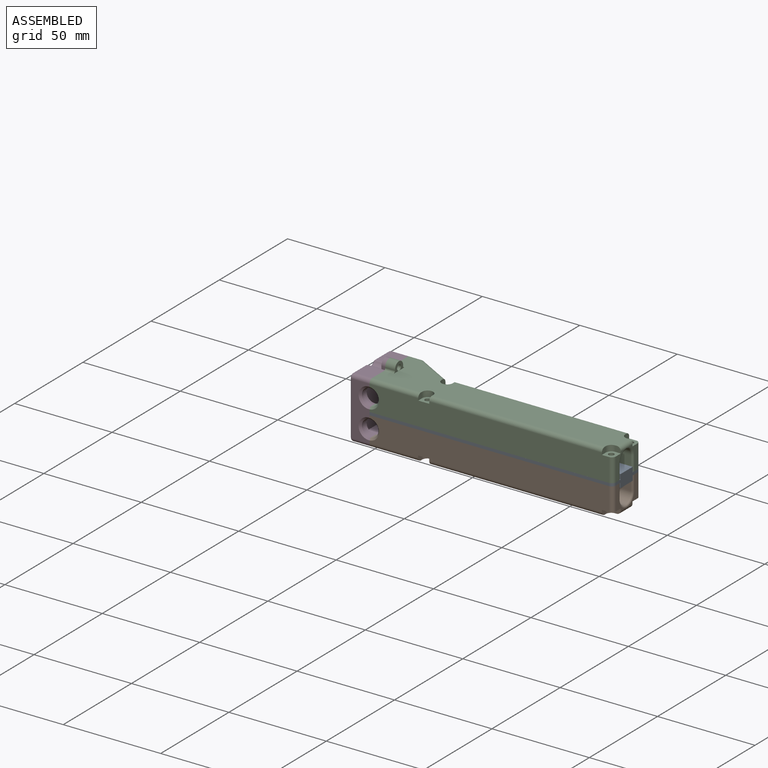
[diagram: assembled view]
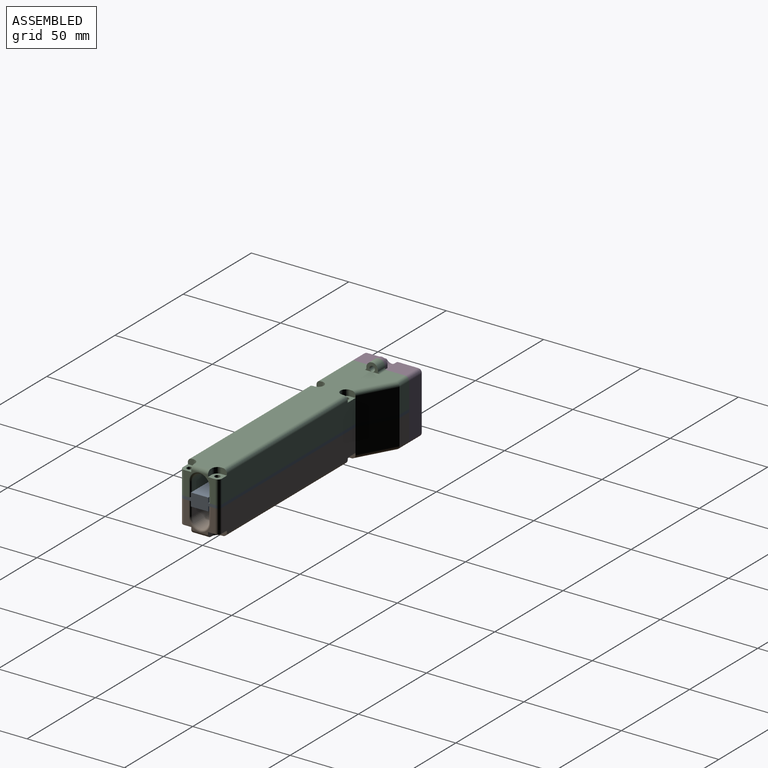
[diagram: assembled view, second angle]
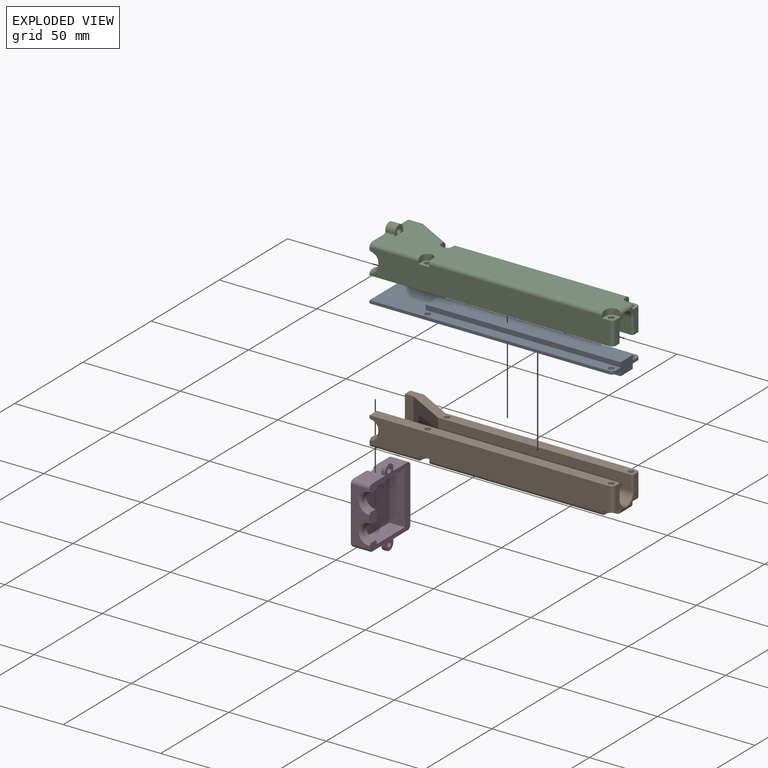
[diagram: exploded view]
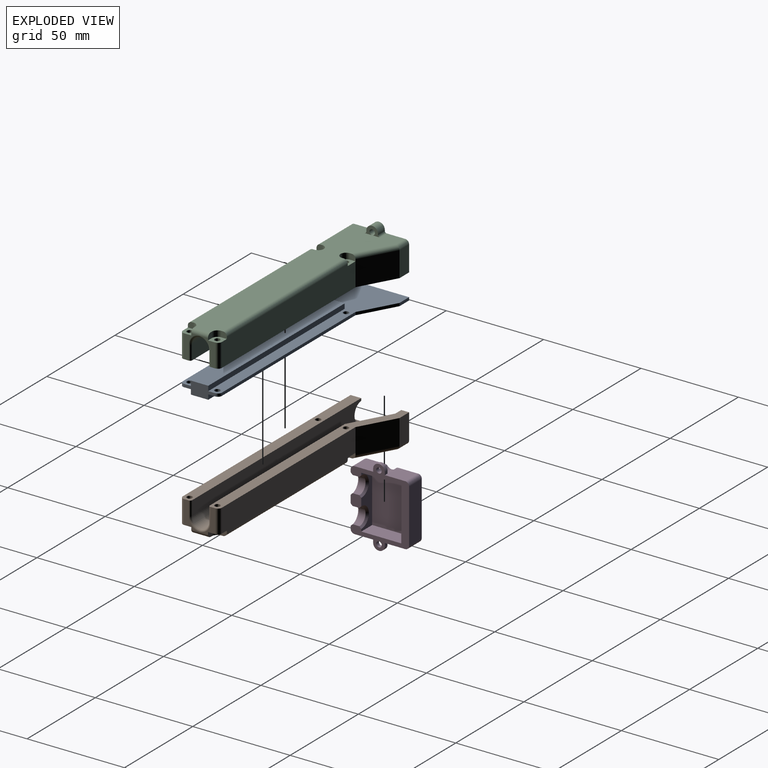
[diagram: exploded view, second angle]
ASSEMBLY  parts=4 mates=9
PART A: 22 faces, bbox 125x30x6.5 mm
  f0: plane 16x6.5mm, normal (1,0,0), area 68.5mm2, adj f6,f7,f9,f10,f11,f13,f14,f15
  f1: plane 98x1.5mm, normal (0,1,0), area 147mm2, adj f2,f6,f7,f16
  f2: plane 18x10mm, normal (0.49,0.87,0), area 30.9mm2, adj f1,f3,f6,f7
  f3: plane 7x1.5mm, normal (0,1,0), area 10.5mm2, adj f2,f4,f6,f7
  f4: plane 30x1.5mm, normal (-1,0,0), area 45mm2, adj f3,f5,f6,f7
  f5: plane 123x1.5mm, normal (0,-1,0), area 184.5mm2, adj f4,f6,f7,f17
  f6: plane 125x30mm, normal (0,0,1), area 1743.7mm2, adj f0,f1,f2,f3,f4,f5,f8,f9
  f7: plane 125x30mm, normal (0,0,-1), area 1743.7mm2, adj f0,f1,f2,f3,f4,f5,f12,f13
  f8: plane 8.9x2.5mm, normal (-1,0,0), area 22.2mm2, adj f6,f9,f10,f11
  f9: plane 100x2.5mm, normal (0,1,0), area 250mm2, adj f0,f6,f8,f11
  f10: plane 100x2.5mm, normal (0,-1,0), area 250mm2, adj f0,f6,f8,f11
  f11: plane 100x8.9mm, normal (0,0,1), area 890mm2, adj f0,f8,f9,f10
  f12: plane 8.9x2.5mm, normal (-1,0,0), area 22.2mm2, adj f7,f13,f14,f15
  f13: plane 100x2.5mm, normal (0,1,0), area 250mm2, adj f0,f7,f12,f15
  f14: plane 100x2.5mm, normal (0,-1,0), area 250mm2, adj f0,f7,f12,f15
  f15: plane 100x8.9mm, normal (0,0,-1), area 890mm2, adj f0,f12,f13,f14
  f16: cylinder r=2mm len=2mm, axis (0,0,-1), area 4.7mm2, adj f0,f1,f6,f7
  f17: cylinder r=2mm len=2mm, axis (0,0,1), area 4.7mm2, adj f0,f5,f6,f7
  f18: cylinder r=1.4mm len=2.8mm, axis (0,0,1), area 13.2mm2, adj f6,f7
  f19: cylinder r=1.4mm len=2.8mm, axis (0,0,1), area 13.2mm2, adj f6,f7
  f20: cylinder r=1.4mm len=2.8mm, axis (0,0,1), area 13.2mm2, adj f6,f7
  f21: cylinder r=1.4mm len=2.8mm, axis (0,0,1), area 13.2mm2, adj f6,f7
PART B: 60 faces, bbox 125.1x30x19.4 mm
  f0: cylinder r=2mm len=25.01mm, axis (-1,0,0), area 78.6mm2, adj f1,f13,f14,f56
  f1: plane 123x26mm, normal (0,0,-1), area 2035.3mm2, adj f0,f3,f6,f8,f9,f13,f30,f31
  f2: cylinder r=1.4mm len=12mm, axis (0,0,-1), area 105.6mm2, adj f19,f59
  f3: cylinder r=2mm len=88.59mm, axis (-1,0,0), area 278.3mm2, adj f1,f14,f51,f57
  f4: plane 13x7.26mm, normal (1,0,0), area 34.5mm2, adj f5,f6,f19,f35,f36,f52,f54
  f5: cylinder r=2mm len=12mm, axis (0,0,-1), area 37.7mm2, adj f4,f14,f19,f54
  f6: cylinder r=2mm len=8.6mm, axis (0,-1,0), area 26.9mm2, adj f1,f4,f11,f34,f44,f52
  f7: plane 98x13mm, normal (0,1,0), area 1264.6mm2, adj f8,f9,f12,f15,f16,f42,f45,f47
  f8: cylinder r=2mm len=2mm, axis (1,0,0), area 0.6mm2, adj f1,f7,f31,f47
  f9: cylinder r=2mm len=88.59mm, axis (1,0,0), area 278.3mm2, adj f1,f7,f42,f49
  f10: cylinder r=1.4mm len=12mm, axis (0,0,-1), area 105.6mm2, adj f15,f50
  f11: plane 13x7.26mm, normal (1,0,0), area 34.5mm2, adj f6,f12,f15,f32,f33,f44,f45
  f12: cylinder r=2mm len=12mm, axis (0,0,1), area 37.7mm2, adj f7,f11,f15,f45
  f13: plane 30.01x19.4mm, normal (-1,0,0), area 140.3mm2, adj f0,f1,f14,f15,f17,f21,f23,f24
  f14: plane 123x13mm, normal (0,-1,0), area 1549.6mm2, adj f0,f3,f5,f13,f18,f19,f29,f51
  f15: plane 125x15.45mm, normal (0,0,1), area 659.6mm2, adj f7,f10,f11,f12,f13,f16,f17,f22
  f16: plane 18x13mm, normal (0.49,0.87,0), area 267.7mm2, adj f7,f15,f17,f31
  f17: plane 13x7mm, normal (0,1,0), area 91mm2, adj f13,f15,f16,f30
  f18: plane 5.46x2.22mm, normal (-1,0,0), area 11.1mm2, adj f14,f19,f21,f27,f28,f29
  f19: plane 125x5.45mm, normal (0,0,1), area 667.9mm2, adj f2,f4,f5,f14,f18,f21,f36,f55
  f20: cylinder r=4.55mm len=99mm, axis (1,0,0), area 1415.1mm2, adj f21,f22,f25,f33,f34,f35
  f21: plane 124x12.9mm, normal (0,1,0), area 1025mm2, adj f13,f18,f19,f20,f24,f25,f28,f36
  f22: plane 99x7.5mm, normal (0,-1,0), area 742.5mm2, adj f15,f20,f26,f32
  f23: plane 12.9x4.39mm, normal (0,-1,0), area 56.6mm2, adj f13,f15,f24,f26
  f24: plane 25x20.55mm, normal (0,0,1), area 395.8mm2, adj f13,f21,f23,f25,f26
  f25: plane 9.1x5.4mm, normal (-1,0,0), area 16.6mm2, adj f20,f21,f24,f26
  f26: plane 20.61x12.9mm, normal (-0.49,-0.87,0), area 304.1mm2, adj f15,f22,f23,f24,f25
  f27: cylinder r=4.25mm len=8.48mm, axis (0,-1,0), area 43.9mm2, adj f13,f18,f28,f29
  f28: cone r=5.25mm half-angle=45deg, axis (0,1,0), area 20.2mm2, adj f13,f18,f21,f27
  f29: cone r=4.25mm half-angle=45deg, axis (0,-1,0), area 20.2mm2, adj f13,f14,f18,f27
  f30: cylinder r=2mm len=7mm, axis (1,0,0), area 21.4mm2, adj f1,f13,f17,f31
  f31: cylinder r=2mm len=19.42mm, axis (0.87,-0.49,0), area 64.7mm2, adj f1,f8,f16,f30
  f32: cylinder r=1mm len=7.5mm, axis (0,0,1), area 11.8mm2, adj f11,f15,f22,f33
  f33: torus R=5.55mm, axis (1,0,0), area 11.1mm2, adj f11,f20,f32,f34
  f34: bspline ~2.38x1.19mm, area 2.1mm2, adj f6,f20,f33,f35
  f35: torus R=5.55mm, axis (1,0,0), area 11.1mm2, adj f4,f20,f34,f36
  f36: cylinder r=1mm len=7.5mm, axis (0,0,-1), area 11.8mm2, adj f4,f19,f21,f35
  f37: plane 5x1.55mm, normal (0,-1,0), area 7.7mm2, adj f1,f13,f38,f41
  f38: cylinder r=3mm len=6mm, axis (-1,0,0), area 46.1mm2, adj f13,f37,f39,f41
  f39: plane 5x1.45mm, normal (0,1,0), area 7.2mm2, adj f1,f13,f38,f41
  f40: cylinder r=1.4mm len=5mm, axis (-1,0,0), area 42.5mm2, adj f1,f13,f41
  f41: plane 6x4.39mm, normal (1,0,0), area 16.3mm2, adj f1,f37,f38,f39,f40
  f42: plane 3x2.85mm, normal (1,0,0), area 7.7mm2, adj f1,f7,f9,f43,f45
  f43: cylinder r=2.85mm len=3mm, axis (0,0,-1), area 13.4mm2, adj f1,f42,f44,f45
  f44: plane 3x2.86mm, normal (0,1,0), area 7.7mm2, adj f1,f6,f11,f43,f45
  f45: plane 5.71x5.7mm, normal (0,0,-1), area 23.7mm2, adj f7,f11,f12,f42,f43,f44,f46
  f46: cylinder r=1.4mm len=12mm, axis (0,0,-1), area 105.6mm2, adj f15,f45
  f47: plane 3x2.85mm, normal (1,0,0), area 7.7mm2, adj f1,f7,f8,f48,f50
  f48: cylinder r=2.85mm len=5.7mm, axis (0,0,-1), area 26.9mm2, adj f1,f47,f49,f50
  f49: plane 3x2.85mm, normal (-1,0,0), area 7.7mm2, adj f1,f7,f9,f48,f50
  f50: plane 5.7x5.7mm, normal (0,0,-1), area 22.8mm2, adj f7,f10,f47,f48,f49
  f51: plane 3x2.85mm, normal (1,0,0), area 7.7mm2, adj f1,f3,f14,f53,f54
  f52: plane 3x2.86mm, normal (0,-1,0), area 7.7mm2, adj f1,f4,f6,f53,f54
  f53: cylinder r=2.85mm len=3mm, axis (0,0,-1), area 13.4mm2, adj f1,f51,f52,f54
  f54: plane 5.71x5.7mm, normal (0,0,-1), area 23.7mm2, adj f4,f5,f14,f51,f52,f53,f55
  f55: cylinder r=1.4mm len=12mm, axis (0,0,-1), area 105.6mm2, adj f19,f54
  f56: plane 3x2.85mm, normal (1,0,0), area 7.7mm2, adj f0,f1,f14,f58,f59
  f57: plane 3x2.85mm, normal (-1,0,0), area 7.7mm2, adj f1,f3,f14,f58,f59
  f58: cylinder r=2.85mm len=5.7mm, axis (0,0,-1), area 26.9mm2, adj f1,f56,f57,f59
  f59: plane 5.7x5.7mm, normal (0,0,-1), area 22.8mm2, adj f2,f14,f56,f57,f58
PART C: 62 faces, bbox 125.1x30x19.4 mm
  f0: cylinder r=2mm len=25.01mm, axis (-1,0,0), area 78.6mm2, adj f1,f13,f14,f56
  f1: plane 123x26mm, normal (0,0,1), area 2025.3mm2, adj f0,f3,f6,f8,f9,f13,f30,f31
  f2: cylinder r=1.4mm len=12mm, axis (0,0,1), area 105.6mm2, adj f19,f59
  f3: cylinder r=2mm len=88.59mm, axis (-1,0,0), area 278.3mm2, adj f1,f14,f51,f57
  f4: plane 13x7.26mm, normal (1,0,0), area 34.5mm2, adj f5,f6,f19,f35,f36,f52,f54
  f5: cylinder r=2mm len=12mm, axis (0,0,1), area 37.7mm2, adj f4,f14,f19,f54
  f6: cylinder r=2mm len=8.6mm, axis (0,-1,0), area 26.9mm2, adj f1,f4,f11,f34,f44,f52
  f7: plane 98x13mm, normal (0,1,0), area 1264.6mm2, adj f8,f9,f12,f15,f16,f42,f45,f47
  f8: cylinder r=2mm len=2mm, axis (1,0,0), area 0.6mm2, adj f1,f7,f31,f47
  f9: cylinder r=2mm len=88.59mm, axis (1,0,0), area 278.3mm2, adj f1,f7,f42,f49
  f10: cylinder r=1.4mm len=12mm, axis (0,0,1), area 105.6mm2, adj f15,f50
  f11: plane 13x7.26mm, normal (1,0,0), area 34.5mm2, adj f6,f12,f15,f32,f33,f44,f45
  f12: cylinder r=2mm len=12mm, axis (0,0,-1), area 37.7mm2, adj f7,f11,f15,f45
  f13: plane 30.01x19.4mm, normal (-1,0,0), area 140.7mm2, adj f0,f1,f14,f15,f17,f21,f23,f24
  f14: plane 123x13mm, normal (0,-1,0), area 1549.6mm2, adj f0,f3,f5,f13,f18,f19,f29,f51
  f15: plane 125x15.45mm, normal (0,0,-1), area 659.6mm2, adj f7,f10,f11,f12,f13,f16,f17,f22
  f16: plane 18x13mm, normal (0.49,0.87,0), area 267.7mm2, adj f7,f15,f17,f31
  f17: plane 13x7mm, normal (0,1,0), area 91mm2, adj f13,f15,f16,f30
  f18: plane 5.46x2.22mm, normal (-1,0,0), area 11.1mm2, adj f14,f19,f21,f27,f28,f29
  f19: plane 125x5.45mm, normal (0,0,-1), area 667.9mm2, adj f2,f4,f5,f14,f18,f21,f36,f55
  f20: cylinder r=4.55mm len=99mm, axis (1,0,0), area 1415.1mm2, adj f21,f22,f25,f33,f34,f35
  f21: plane 124x12.9mm, normal (0,1,0), area 1025mm2, adj f13,f18,f19,f20,f24,f25,f28,f36
  f22: plane 99x7.5mm, normal (0,-1,0), area 742.5mm2, adj f15,f20,f26,f32
  f23: plane 12.9x4.39mm, normal (0,-1,0), area 56.6mm2, adj f13,f15,f24,f26
  f24: plane 25x20.55mm, normal (0,0,-1), area 395.8mm2, adj f13,f21,f23,f25,f26
  f25: plane 9.1x5.4mm, normal (-1,0,0), area 16.6mm2, adj f20,f21,f24,f26
  f26: plane 20.61x12.9mm, normal (-0.49,-0.87,0), area 304.1mm2, adj f15,f22,f23,f24,f25
  f27: cylinder r=4.25mm len=8.48mm, axis (0,-1,0), area 43.9mm2, adj f13,f18,f28,f29
  f28: cone r=5.25mm half-angle=45deg, axis (0,1,0), area 20.2mm2, adj f13,f18,f21,f27
  f29: cone r=4.25mm half-angle=45deg, axis (0,-1,0), area 20.2mm2, adj f13,f14,f18,f27
  f30: cylinder r=2mm len=7mm, axis (1,0,0), area 21.4mm2, adj f1,f13,f17,f31
  f31: cylinder r=2mm len=19.42mm, axis (0.87,-0.49,0), area 64.7mm2, adj f1,f8,f16,f30
  f32: cylinder r=1mm len=7.5mm, axis (0,0,-1), area 11.8mm2, adj f11,f15,f22,f33
  f33: torus R=5.55mm, axis (1,0,0), area 11.1mm2, adj f11,f20,f32,f34
  f34: bspline ~2.38x1.19mm, area 2.1mm2, adj f6,f20,f33,f35
  f35: torus R=5.55mm, axis (1,0,0), area 11.1mm2, adj f4,f20,f34,f36
  f36: cylinder r=1mm len=7.5mm, axis (0,0,1), area 11.8mm2, adj f4,f19,f21,f35
  f37: plane 5x0.55mm, normal (0,-1,0), area 2.7mm2, adj f13,f38,f41,f61
  f38: cylinder r=3mm len=6mm, axis (-1,0,0), area 46.1mm2, adj f13,f37,f39,f41
  f39: plane 5x0.45mm, normal (0,1,0), area 2.2mm2, adj f13,f38,f41,f60
  f40: cylinder r=1.4mm len=5mm, axis (-1,0,0), area 42.5mm2, adj f1,f13,f41
  f41: plane 8x4.39mm, normal (1,0,0), area 16.8mm2, adj f1,f37,f38,f39,f40,f60,f61
  f42: plane 3x2.85mm, normal (1,0,0), area 7.7mm2, adj f1,f7,f9,f43,f45
  f43: cylinder r=2.85mm len=3mm, axis (0,0,1), area 13.4mm2, adj f1,f42,f44,f45
  f44: plane 3x2.86mm, normal (0,1,0), area 7.7mm2, adj f1,f6,f11,f43,f45
  f45: plane 5.71x5.7mm, normal (0,0,1), area 23.7mm2, adj f7,f11,f12,f42,f43,f44,f46
  f46: cylinder r=1.4mm len=12mm, axis (0,0,1), area 105.6mm2, adj f15,f45
  f47: plane 3x2.85mm, normal (1,0,0), area 7.7mm2, adj f1,f7,f8,f48,f50
  f48: cylinder r=2.85mm len=5.7mm, axis (0,0,1), area 26.9mm2, adj f1,f47,f49,f50
  f49: plane 3x2.85mm, normal (-1,0,0), area 7.7mm2, adj f1,f7,f9,f48,f50
  f50: plane 5.7x5.7mm, normal (0,0,1), area 22.8mm2, adj f7,f10,f47,f48,f49
  f51: plane 3x2.85mm, normal (1,0,0), area 7.7mm2, adj f1,f3,f14,f53,f54
  f52: plane 3x2.86mm, normal (0,-1,0), area 7.7mm2, adj f1,f4,f6,f53,f54
  f53: cylinder r=2.85mm len=3mm, axis (0,0,1), area 13.4mm2, adj f1,f51,f52,f54
  f54: plane 5.71x5.7mm, normal (0,0,1), area 23.7mm2, adj f4,f5,f14,f51,f52,f53,f55
  f55: cylinder r=1.4mm len=12mm, axis (0,0,1), area 105.6mm2, adj f19,f54
  f56: plane 3x2.85mm, normal (1,0,0), area 7.7mm2, adj f0,f1,f14,f58,f59
  f57: plane 3x2.85mm, normal (-1,0,0), area 7.7mm2, adj f1,f3,f14,f58,f59
  f58: cylinder r=2.85mm len=5.7mm, axis (0,0,1), area 26.9mm2, adj f1,f56,f57,f59
  f59: plane 5.7x5.7mm, normal (0,0,1), area 22.8mm2, adj f2,f14,f56,f57,f58
  f60: cylinder r=1mm len=5mm, axis (1,0,0), area 7.9mm2, adj f1,f13,f39,f41
  f61: cylinder r=1mm len=5mm, axis (-1,0,0), area 7.9mm2, adj f1,f13,f37,f41
PART D: 56 faces, bbox 10.1x30.3x40.3 mm
  f0: plane 27.3x8mm, normal (0,1,0), area 125.2mm2, adj f2,f3,f11,f27,f29,f52,f55
  f1: plane 27.5x9mm, normal (0,-1,0), area 154.3mm2, adj f2,f3,f23,f24,f35,f51,f54
  f2: plane 40.29x30.01mm, normal (1,0,0), area 286.5mm2, adj f0,f1,f4,f5,f8,f11,f12,f13
  f3: plane 5.93x5.46mm, normal (1,0,0), area 30.3mm2, adj f0,f1,f50,f51,f52,f53,f54,f55
  f4: plane 10.24x9mm, normal (0,0,-1), area 92.2mm2, adj f2,f7,f19,f49
  f5: plane 9.34x9mm, normal (0,0,-1), area 84.1mm2, adj f2,f6,f23,f45
  f6: cylinder r=1mm len=9.34mm, axis (0,1,0), area 14.7mm2, adj f5,f30,f37,f46
  f7: cylinder r=1mm len=10.24mm, axis (0,1,0), area 16.1mm2, adj f4,f30,f36,f48
  f8: plane 9.34x9mm, normal (0,0,1), area 84.1mm2, adj f2,f9,f24,f39
  f9: cylinder r=1mm len=9.34mm, axis (0,-1,0), area 14.7mm2, adj f8,f30,f33,f40
  f10: plane 6x6mm, normal (-1,0,0), area 22.5mm2, adj f20,f21,f22,f26,f44,f45,f49
  f11: plane 20.55x8mm, normal (0,0,1), area 164.4mm2, adj f0,f2,f12,f29
  f12: plane 27.3x8mm, normal (0,-1,0), area 218.4mm2, adj f2,f11,f27,f29
  f13: plane 2x1.57mm, normal (0,-1,0), area 3.1mm2, adj f2,f14,f28,f39
  f14: cylinder r=3mm len=6mm, axis (1,0,0), area 18.4mm2, adj f2,f13,f15,f28
  f15: plane 2x1.47mm, normal (0,1,0), area 2.9mm2, adj f2,f14,f28,f43
  f16: plane 10.24x9mm, normal (0,0,1), area 92.2mm2, adj f2,f17,f31,f43
  f17: cylinder r=2mm len=9mm, axis (1,0,0), area 28.3mm2, adj f2,f16,f18,f32
  f18: plane 27.5x9mm, normal (0,1,0), area 247.5mm2, adj f2,f17,f19,f34
  f19: cylinder r=2mm len=9mm, axis (1,0,0), area 28.3mm2, adj f2,f4,f18,f36
  f20: plane 2x1.47mm, normal (0,1,0), area 2.9mm2, adj f2,f10,f21,f49
  f21: cylinder r=3mm len=6mm, axis (1,0,0), area 18.4mm2, adj f2,f10,f20,f22
  f22: plane 2x1.57mm, normal (0,-1,0), area 3.1mm2, adj f2,f10,f21,f45
  f23: cylinder r=2mm len=9mm, axis (1,0,0), area 28.3mm2, adj f1,f2,f5,f37
  f24: cylinder r=2mm len=9mm, axis (1,0,0), area 28.3mm2, adj f1,f2,f8,f33
  f25: cylinder r=1.4mm len=2.8mm, axis (1,0,0), area 17.6mm2, adj f2,f28
  f26: cylinder r=1.4mm len=2.8mm, axis (1,0,0), area 17.6mm2, adj f2,f10
  f27: plane 20.55x8mm, normal (0,0,-1), area 164.4mm2, adj f0,f2,f12,f29
  f28: plane 6x6mm, normal (-1,0,0), area 22.5mm2, adj f13,f14,f15,f25,f38,f39,f43
  f29: plane 27.3x20.55mm, normal (1,0,0), area 561mm2, adj f0,f11,f12,f27
  f30: plane 29.5x28mm, normal (-1,0,0), area 810.7mm2, adj f6,f7,f9,f31,f32,f33,f34,f35
  f31: cylinder r=1mm len=10.24mm, axis (0,-1,0), area 16.1mm2, adj f16,f30,f32,f42
  f32: torus R=1mm, axis (-1,0,0), area 4mm2, adj f17,f30,f31,f34
  f33: torus R=1mm, axis (-1,0,0), area 4mm2, adj f9,f24,f30,f35
  f34: cylinder r=1mm len=27.5mm, axis (0,0,1), area 43.2mm2, adj f18,f30,f32,f36
  f35: cylinder r=1mm len=27.5mm, axis (0,0,-1), area 43.2mm2, adj f1,f30,f33,f37
  f36: torus R=1mm, axis (-1,0,0), area 4mm2, adj f7,f19,f30,f34
  f37: torus R=1mm, axis (-1,0,0), area 4mm2, adj f6,f23,f30,f35
  f38: cylinder r=3mm len=7mm, axis (-1,0,0), area 39.1mm2, adj f28,f39,f41,f43
  f39: cylinder r=1mm len=9mm, axis (-1,0,0), area 6.9mm2, adj f2,f8,f13,f28,f38,f40
  f40: sphere r=1mm, area 0.9mm2, adj f9,f39,f41
  f41: torus R=4mm, axis (-1,0,0), area 9.8mm2, adj f30,f38,f40,f42
  f42: sphere r=1mm, area 0.9mm2, adj f31,f41,f43
  f43: cylinder r=1mm len=9mm, axis (-1,0,0), area 6.9mm2, adj f2,f15,f16,f28,f38,f42
  f44: cylinder r=3mm len=7mm, axis (-1,0,0), area 39.1mm2, adj f10,f45,f47,f49
  f45: cylinder r=1mm len=9mm, axis (-1,0,0), area 6.9mm2, adj f2,f5,f10,f22,f44,f46
  f46: sphere r=1mm, area 0.9mm2, adj f6,f45,f47
  f47: torus R=4mm, axis (-1,0,0), area 9.8mm2, adj f30,f44,f46,f48
  f48: sphere r=1mm, area 0.9mm2, adj f7,f47,f49
  f49: cylinder r=1mm len=9mm, axis (-1,0,0), area 6.9mm2, adj f2,f4,f10,f20,f44,f48
  f50: cylinder r=4.25mm len=8.5mm, axis (0,-1,0), area 48.2mm2, adj f2,f3,f51,f52
  f51: cone r=4.25mm half-angle=45deg, axis (0,-1,0), area 22mm2, adj f1,f2,f3,f50
  f52: cone r=4.25mm half-angle=45deg, axis (0,1,0), area 22mm2, adj f0,f2,f3,f50
  f53: cylinder r=4.25mm len=8.5mm, axis (0,-1,0), area 48.2mm2, adj f2,f3,f54,f55
  f54: cone r=5.25mm half-angle=45deg, axis (0,-1,0), area 22mm2, adj f1,f2,f3,f53
  f55: cone r=5.25mm half-angle=45deg, axis (0,1,0), area 22mm2, adj f0,f2,f3,f53
PLACE A t=(15.55,11.58,-79.49)mm
PLACE B t=(-59.29,15.27,-77.99)mm
PLACE C t=(-59.29,15.27,-77.99)mm
PLACE D t=(-59.29,15.27,-77.99)mm
MATE planar D.f16 <-> C.f1  axis (0,0,1) through (-88.79,24.91,-62.99)mm
MATE planar C.f30 <-> D.f2  axis (-1,0,0) through (-84.29,30.03,-64.99)mm
MATE planar B.f13 <-> A.f4  axis (-1,0,0) through (-84.29,32.03,-85.99)mm
MATE planar A.f6 <-> C.f15  axis (0,0,1) through (-33.33,13.32,-77.99)mm
MATE planar A.f1 <-> C.f7  axis (0,1,0) through (-10.29,22.03,-78.74)mm
MATE planar A.f0 <-> C.f11  axis (1,0,0) through (40.71,12.03,-78.74)mm
MATE planar B.f15 <-> A.f7  axis (0,0,1) through (-21.38,20.53,-79.49)mm
MATE planar B.f7 <-> A.f1  axis (0,1,0) through (-10.22,22.03,-85.94)mm
MATE planar D.f18 <-> C.f17  axis (0,1,0) through (-88.79,32.03,-78.74)mm
